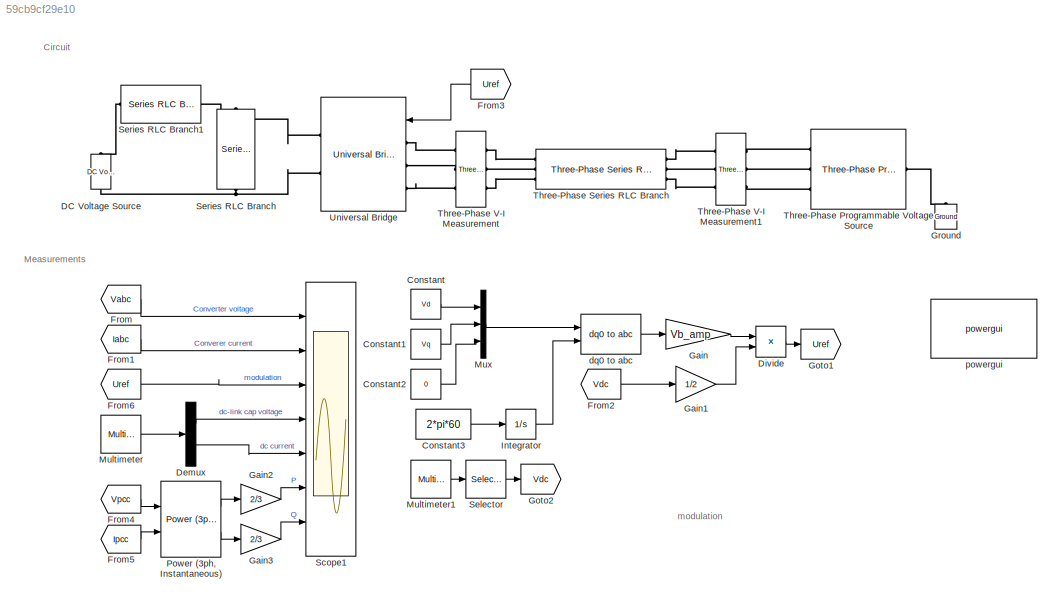
MODEL slx_59cb9cf29e10
KIND model
CONFIG AbsTol = auto
CONFIG EnableMultiTasking = off
CONFIG FixedStep = Ts
CONFIG InitFcn = Ts = 50e-6;\n\nVb_amp = 400/sqrt(3)*sqrt(2); % 400 V is the L-L RMS value. \nPb = 1e6; % 1 MW\ntheta = pi/6;\nVd = cos(theta);\nVq = sin(theta);\n\nZb = 400^2/Pb; % 0.16; \nL = 0.5*Zb/377;\nR = 0.1*Zb; 
CONFIG MaxStep = auto
CONFIG MinStep = auto
CONFIG RelTol = 1e-3
CONFIG SampleTimeConstraint = Unconstrained
CONFIG SolverName = ode3
CONFIG StartTime = 0.0
CONFIG StopTime = 2
BLOCK [Constant] Constant
  Value = Vd
BLOCK [Constant] Constant1
  Value = Vq
BLOCK [Constant] Constant2
  Value = 0
BLOCK [Constant] Constant3
  Value = 2*pi*60
BLOCK [Reference] DC Voltage Source  REF=spsDCVoltageSourceLib/DC Voltage Source
  Ports = [0, 0, 0, 0, 0, 1, 1]
  SourceBlock = spsDCVoltageSourceLib/DC Voltage Source
  SourceProductBaseCode = PS
  SourceType = DC Voltage Source
BLOCK [Demux] Demux
  Outputs = 2
  Ports = [1, 2]
BLOCK [Product] Divide
  Inputs = */
  Ports = [2, 1]
BLOCK [From] From
  GotoTag = Vabc
  TagVisibility = global
BLOCK [From] From1
  GotoTag = Iabc
  TagVisibility = global
BLOCK [From] From2
  GotoTag = Vdc
BLOCK [From] From3
  GotoTag = Uref
BLOCK [From] From4
  GotoTag = Vpcc
  TagVisibility = global
BLOCK [From] From5
  GotoTag = Ipcc
  TagVisibility = global
BLOCK [From] From6
  GotoTag = Uref
BLOCK [Gain] Gain
  Gain = Vb_amp
BLOCK [Gain] Gain1
  Gain = 1/2
BLOCK [Gain] Gain2
  Gain = 2/3
BLOCK [Gain] Gain3
  Gain = 2/3
BLOCK [Goto] Goto1
  GotoTag = Uref
BLOCK [Goto] Goto2
  GotoTag = Vdc
BLOCK [Reference] Ground  REF=spsGroundLib/Ground
  NameLocation = right
  Ports = [0, 0, 0, 0, 0, 1]
  SourceBlock = spsGroundLib/Ground
  SourceProductBaseCode = PS
  SourceType = Ground
BLOCK [Integrator] Integrator
  Ports = [1, 1]
BLOCK [Reference] Multimeter  REF=spsMultimeterLib/Multimeter
  Ports = [0, 1]
  SourceBlock = spsMultimeterLib/Multimeter
  SourceProductBaseCode = PS
  SourceType = Multimeter
BLOCK [Reference] Multimeter1  REF=spsMultimeterLib/Multimeter
  Ports = [0, 1]
  SourceBlock = spsMultimeterLib/Multimeter
  SourceProductBaseCode = PS
  SourceType = Multimeter
BLOCK [Mux] Mux
  DisplayOption = bar
  Inputs = 3
  Ports = [3, 1]
BLOCK [Reference] Power (3ph, Instantaneous)  REF=spsPower3phInstantaneousLib/Power
(3ph, Instantaneous)
  Ports = [2, 2]
  SourceBlock = spsPower3phInstantaneousLib/Power\n(3ph, Instantaneous)
  SourceProductBaseCode = PS
  SourceType = Power (3ph, Instantaneous)
BLOCK [Scope] Scope1
  Floating = off
  NumInputPorts = 7
  Ports = [7]
  ScopeSpecificationString = Simulink.scopes.TimeScopeBlockCfg('CurrentConfiguration', extmgr.ConfigurationSet(extmgr.Configuration('Core','General UI',true),extmgr.Configuration('Core','Source UI',true),extmgr.Configuration('Sources','WiredSimulink',true,'DataLoggingVariableName','ScopeData1'),extmgr.Configuration('Visuals','Time Domain',true,'SerializedDisplays',{struct('MinYLimReal','-408.48344','MaxYLimReal','408.58385','...<+5580ch>
BLOCK [Selector] Selector
  IndexOptions = Index vector (dialog)
  Indices = [1]
  InputPortWidth = 2
  OutputSizes = 1
  Ports = [1, 1]
BLOCK [Reference] Series RLC Branch  REF=spsSeriesRLCBranchLib/Series RLC Branch
  NameLocation = left
  Ports = [0, 0, 0, 0, 0, 1, 1]
  SourceBlock = spsSeriesRLCBranchLib/Series RLC Branch
  SourceProductBaseCode = PS
  SourceType = Series RLC Branch
BLOCK [Reference] Series RLC Branch1  REF=spsSeriesRLCBranchLib/Series RLC Branch
  Ports = [0, 0, 0, 0, 0, 1, 1]
  SourceBlock = spsSeriesRLCBranchLib/Series RLC Branch
  SourceProductBaseCode = PS
  SourceType = Series RLC Branch
BLOCK [Reference] Three-Phase Programmable Voltage Source  REF=spsThreePhaseProgrammableVoltageSourceLib/Three-Phase
Programmable
Voltage Source
  Ports = [0, 0, 0, 0, 0, 1, 3]
  SourceBlock = spsThreePhaseProgrammableVoltageSourceLib/Three-Phase\nProgrammable\nVoltage Source
  SourceProductBaseCode = PS
  SourceType = Three-Phase Programmable Voltage Source
BLOCK [Reference] Three-Phase Series RLC Branch  REF=spsThreePhaseSeriesRLCBranchLib/Three-Phase
Series RLC Branch
  AttributesFormatString = \n
  Ports = [0, 0, 0, 0, 0, 3, 3]
  SourceBlock = spsThreePhaseSeriesRLCBranchLib/Three-Phase\nSeries RLC Branch
  SourceProductBaseCode = PS
  SourceType = Three-Phase Series RLC Branch
BLOCK [Reference] Three-Phase V-I Measurement  REF=spsThreePhaseVIMeasurementLib/Three-Phase
V-I Measurement
  Ports = [0, 0, 0, 0, 0, 3, 3]
  SourceBlock = spsThreePhaseVIMeasurementLib/Three-Phase\nV-I Measurement
  SourceProductBaseCode = PS
  SourceType = Three-Phase VI Measurement
BLOCK [Reference] Three-Phase V-I Measurement1  REF=spsThreePhaseVIMeasurementLib/Three-Phase
V-I Measurement
  Ports = [0, 0, 0, 0, 0, 3, 3]
  SourceBlock = spsThreePhaseVIMeasurementLib/Three-Phase\nV-I Measurement
  SourceProductBaseCode = PS
  SourceType = Three-Phase VI Measurement
BLOCK [Reference] Universal Bridge  REF=spsUniversalBridgeLib/Universal Bridge
  Ports = [1, 0, 0, 0, 0, 3, 2]
  SourceBlock = spsUniversalBridgeLib/Universal Bridge
  SourceProductBaseCode = PS
  SourceType = Universal Bridge
BLOCK [Reference] dq0 to abc  REF=spsdq0toabcLib/dq0 to abc
  Ports = [2, 1]
  SourceBlock = spsdq0toabcLib/dq0 to abc
  SourceProductBaseCode = PS
  SourceType = dq0 to abc Transformation
BLOCK [Reference] powergui  REF=spspowerguiLib/powergui
  Ports = []
  Priority = 1
  SourceBlock = spspowerguiLib/powergui
  SourceProductBaseCode = PS
  SourceType = PSB option menu block
ANNOTATION (root): Circuit
ANNOTATION (root): Measurements
ANNOTATION (root): modulation
LINE Constant1:1 -> Mux:2
LINE Constant2:1 -> Mux:3
LINE Constant3:1 -> Integrator:1
LINE Constant:1 -> Mux:1
LINE Demux:1 -> Scope1:4
LINE Demux:2 -> Scope1:5
LINE Divide:1 -> Goto1:1
LINE From1:1 -> Scope1:2
LINE From2:1 -> Gain1:1
LINE From3:1 -> Universal Bridge:1
LINE From4:1 -> Power (3ph, Instantaneous):1
LINE From5:1 -> Power (3ph, Instantaneous):2
LINE From6:1 -> Scope1:3
LINE From:1 -> Scope1:1
LINE Gain1:1 -> Divide:2
LINE Gain2:1 -> Scope1:6
LINE Gain3:1 -> Scope1:7
LINE Gain:1 -> Divide:1
LINE Integrator:1 -> dq0 to abc:2
LINE Multimeter1:1 -> Selector:1
LINE Multimeter:1 -> Demux:1
LINE Mux:1 -> dq0 to abc:1
LINE Power (3ph, Instantaneous):1 -> Gain2:1
LINE Power (3ph, Instantaneous):2 -> Gain3:1
LINE Selector:1 -> Goto2:1
LINE dq0 to abc:1 -> Gain:1
PNET net1: DC Voltage Source:LConn1 -- Series RLC Branch:RConn1 -- Universal Bridge:RConn2
PLINE DC Voltage Source:RConn1 -- Series RLC Branch1:LConn1
PLINE Ground:LConn1 -- Three-Phase Programmable Voltage Source:LConn1
PNET net2: Series RLC Branch1:RConn1 -- Series RLC Branch:LConn1 -- Universal Bridge:RConn1
PLINE Three-Phase Programmable Voltage Source:RConn1 -- Three-Phase V-I Measurement1:RConn1
PLINE Three-Phase Programmable Voltage Source:RConn2 -- Three-Phase V-I Measurement1:RConn2
PLINE Three-Phase Programmable Voltage Source:RConn3 -- Three-Phase V-I Measurement1:RConn3
PLINE Three-Phase Series RLC Branch:LConn1 -- Three-Phase V-I Measurement:RConn1
PLINE Three-Phase Series RLC Branch:LConn2 -- Three-Phase V-I Measurement:RConn2
PLINE Three-Phase Series RLC Branch:LConn3 -- Three-Phase V-I Measurement:RConn3
PLINE Three-Phase Series RLC Branch:RConn1 -- Three-Phase V-I Measurement1:LConn1
PLINE Three-Phase Series RLC Branch:RConn2 -- Three-Phase V-I Measurement1:LConn2
PLINE Three-Phase Series RLC Branch:RConn3 -- Three-Phase V-I Measurement1:LConn3
PLINE Three-Phase V-I Measurement:LConn1 -- Universal Bridge:LConn1
PLINE Three-Phase V-I Measurement:LConn2 -- Universal Bridge:LConn2
PLINE Three-Phase V-I Measurement:LConn3 -- Universal Bridge:LConn3
note: PNET lines group multi-terminal physical nets as a canonical sorted terminal list (undirected conserving connections); 2-terminal nets keep the pairwise PLINE form
